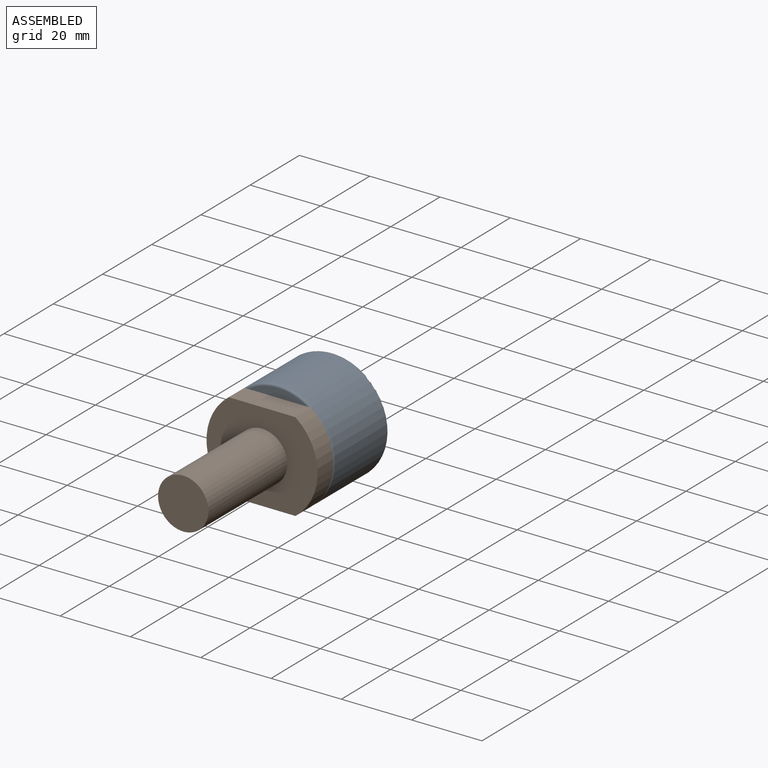
[diagram: assembled view]
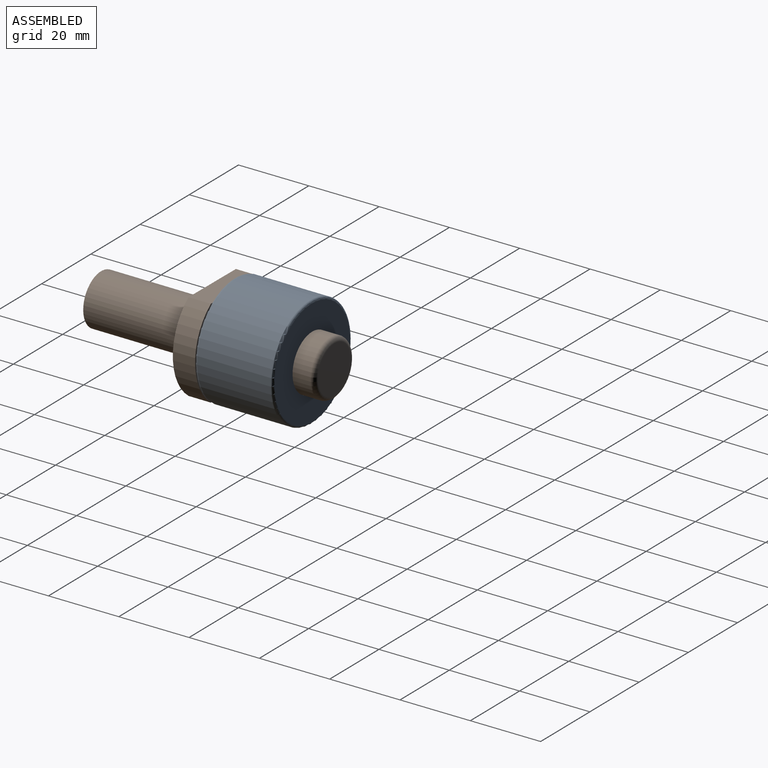
[diagram: assembled view, second angle]
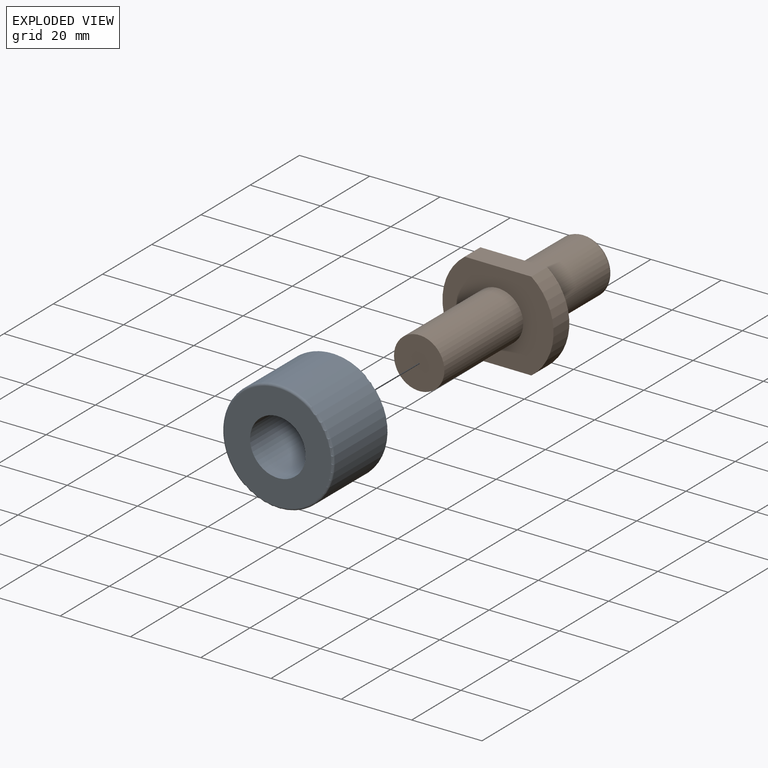
[diagram: exploded view]
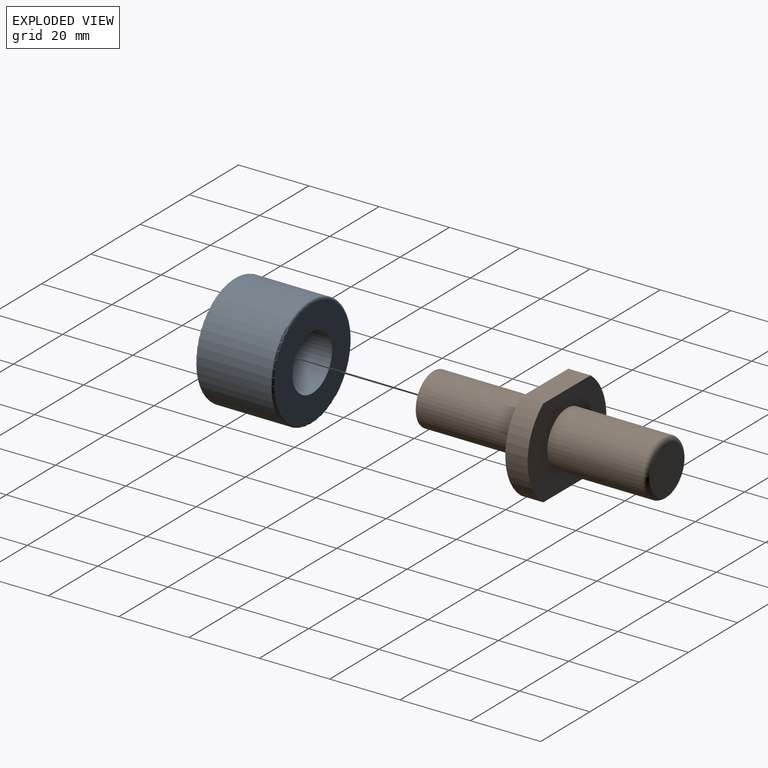
[diagram: exploded view, second angle]
ASSEMBLY  parts=2 mates=2
PART A: 6 faces, bbox 34.4x22.2x34.4 mm
  f0: cylinder r=7.94mm len=22.23mm, axis (0,1,0), area 1108.4mm2, adj f2,f3
  f1: cylinder r=15.88mm len=31.75mm, axis (0,1,0), area 2090.2mm2, adj f4,f5
  f2: plane 30.48x30.48mm, normal (0,-1,0), area 531.7mm2, adj f0,f4
  f3: plane 30.48x30.48mm, normal (0,1,0), area 531.7mm2, adj f0,f5
  f4: torus R=15.24mm, axis (0,-1,0), area 98mm2, adj f1,f2
  f5: torus R=15.24mm, axis (0,-1,0), area 98mm2, adj f1,f3
PART B: 11 faces, bbox 31.8x66.7x25.4 mm
  f0: plane 19.05x6.35mm, normal (0,0,1), area 121mm2, adj f1,f3,f4,f5
  f1: cylinder r=15.88mm len=25.4mm, axis (0,1,0), area 187mm2, adj f0,f2,f4,f5
  f2: plane 19.05x6.35mm, normal (0,0,-1), area 121mm2, adj f1,f3,f4,f5
  f3: cylinder r=15.88mm len=25.4mm, axis (0,1,0), area 187mm2, adj f0,f2,f4,f5
  f4: plane 31.75x25.4mm, normal (0,-1,0), area 546.5mm2, adj f0,f1,f2,f3,f9
  f5: plane 31.75x25.4mm, normal (0,1,0), area 511.4mm2, adj f0,f1,f2,f3,f6
  f6: cylinder r=7.94mm len=27.31mm, axis (0,-1,0), area 1361.8mm2, adj f5,f8
  f7: plane 13.34x13.34mm, normal (0,1,0), area 139.7mm2, adj f8
  f8: torus R=6.67mm, axis (0,-1,0), area 93.7mm2, adj f6,f7
  f9: cylinder r=7.2mm len=31.75mm, axis (0,1,0), area 1436mm2, adj f4,f10
  f10: plane 14.4x14.4mm, normal (0,-1,0), area 162.8mm2, adj f9
PLACE A rot(axis=(0,-1,-0.01),49.6deg) t=(13.67,37.52,-22.51)mm
PLACE B rot(axis=(0,0,-1),0.3deg) t=(9.18,15.32,3.13)mm
MATE planar A.f0 <-> B.f1  axis (-0.01,-1,0) through (9.18,15.32,3.13)mm
MATE cylindrical A.f0 <-> B.f1  axis (0.01,1,0) through (9.18,15.32,3.13)mm
